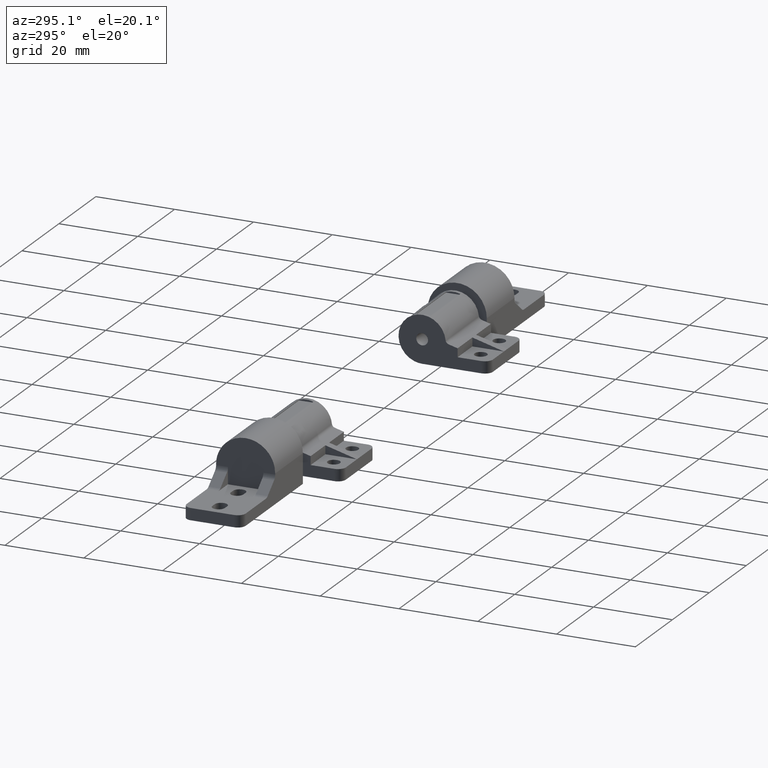
[diagram: clean part render]
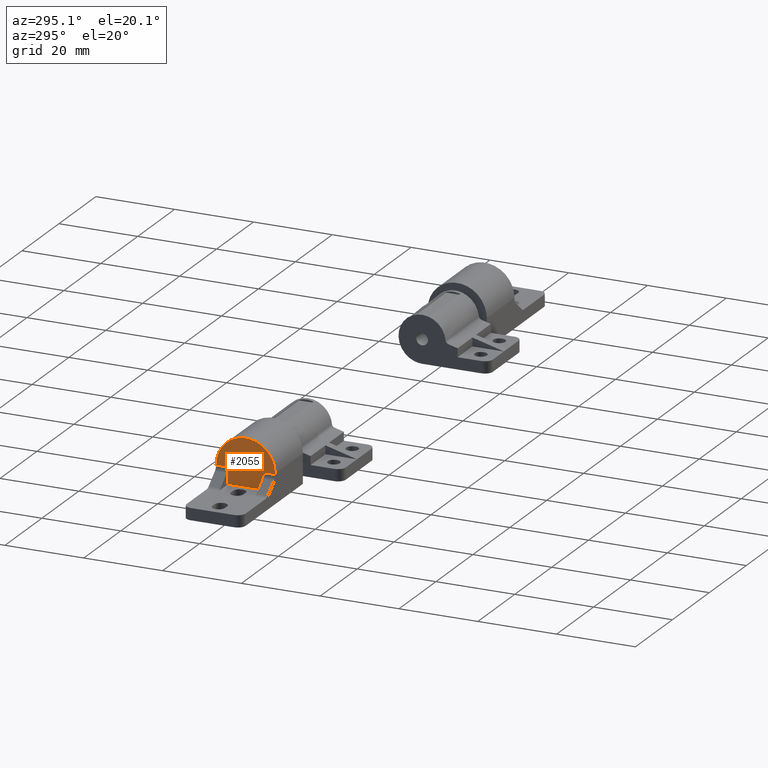
[diagram: same view with one face highlighted and labeled with its STEP entity id]
A machine part, auxiliary view. The second image highlights one B-rep face of the part: STEP entity #2055.
In plain terms, the highlighted face is a freeform B-spline surface patch.
Its self-contained STEP definition (entity closure, byte-faithful):
#1106=CARTESIAN_POINT('',(-15.0,7.500000000000000,0.0));
#1107=VERTEX_POINT('',#1106);
#1113=CARTESIAN_POINT('',(-15.0,-7.500000000000000,0.0));
#1114=VERTEX_POINT('',#1113);
#1115=CARTESIAN_POINT('',(-15.0,-7.500000000000000,0.0));
#1116=CARTESIAN_POINT('',(-15.000000000000011,-7.501328847625066,1.043297594751766));
#1117=CARTESIAN_POINT('',(-15.0,-7.109566026479057,2.882990901483499));
#1118=CARTESIAN_POINT('',(-15.000000000000011,-5.719972775230422,5.018653651019789));
#1119=CARTESIAN_POINT('',(-15.000000000000011,-3.966762885431539,6.493861412510247));
#1120=CARTESIAN_POINT('',(-15.0,-2.139061818931728,7.277218176042391));
#1121=CARTESIAN_POINT('',(-15.0,-0.248362178137775,7.557374842480855));
#1122=CARTESIAN_POINT('',(-15.000000000000011,1.354581506936468,7.439213852767924));
#1123=CARTESIAN_POINT('',(-14.999999999999959,2.888488914937319,6.973746589316159));
#1124=CARTESIAN_POINT('',(-15.000000000000171,4.465772515616563,6.131253869568645));
#1125=CARTESIAN_POINT('',(-15.000000000000060,5.922587102224047,4.777770799378271));
#1126=CARTESIAN_POINT('',(-14.999999999999870,7.169813293310484,2.637708214038809));
#1127=CARTESIAN_POINT('',(-15.000000000000091,7.501063208039253,0.981913970785773));
#1128=CARTESIAN_POINT('',(-15.0,7.500000000000000,0.0));
#1129=B_SPLINE_CURVE_WITH_KNOTS('',3,(#1115,#1116,#1117,#1118,#1119,#1120,#1121,#1122,#1123,#1124,#1125,#1126,#1127,#1128),.UNSPECIFIED.,.F.,.U.,(4,1,1,1,1,1,1,1,1,1,1,4),(0.000001047716193,3.129374237811728,5.522459918324643,7.547461641364459,9.940581025718000,11.413191926827380,13.253763859831601,14.726556317585651,16.199154904521659,18.592318246961661,20.617248221535551,23.562536167939939),.UNSPECIFIED.);
#1130=EDGE_CURVE('',#1114,#1107,#1129,.T.);
#1161=CARTESIAN_POINT('',(-15.0,-4.500000000000000,-4.500000000000000));
#1162=VERTEX_POINT('',#1161);
#1168=CARTESIAN_POINT('',(-15.0,4.499999999999949,-4.500000000000000));
#1169=VERTEX_POINT('',#1168);
#1170=CARTESIAN_POINT('',(-15.0,-4.500000000000000,-4.500000000000000));
#1171=CARTESIAN_POINT('',(-15.0,4.499999999999949,-4.500000000000000));
#1172=QUASI_UNIFORM_CURVE('',1,(#1170,#1171),.UNSPECIFIED.,.F.,.U.);
#1173=EDGE_CURVE('',#1162,#1169,#1172,.T.);
#1345=CARTESIAN_POINT('',(-15.0,4.499999999999949,-0.266374735945797));
#1346=VERTEX_POINT('',#1345);
#1362=CARTESIAN_POINT('',(-15.0,7.500000000000000,-0.266374735945795));
#1363=VERTEX_POINT('',#1362);
#1364=CARTESIAN_POINT('',(-15.0,7.500000000000000,-0.266374735945795));
#1365=CARTESIAN_POINT('',(-15.0,4.499999999999949,-0.266374735945797));
#1366=QUASI_UNIFORM_CURVE('',1,(#1364,#1365),.UNSPECIFIED.,.F.,.U.);
#1367=EDGE_CURVE('',#1363,#1346,#1366,.T.);
#1461=CARTESIAN_POINT('',(-15.0,-4.499999999999949,-0.266374735945797));
#1462=VERTEX_POINT('',#1461);
#1483=CARTESIAN_POINT('',(-15.0,-7.500000000000000,-0.266374735945797));
#1484=VERTEX_POINT('',#1483);
#1498=CARTESIAN_POINT('',(-15.0,-4.499999999999949,-0.266374735945797));
#1499=CARTESIAN_POINT('',(-15.0,-7.500000000000000,-0.266374735945797));
#1500=QUASI_UNIFORM_CURVE('',1,(#1498,#1499),.UNSPECIFIED.,.F.,.U.);
#1501=EDGE_CURVE('',#1462,#1484,#1500,.T.);
#1919=CARTESIAN_POINT('',(-15.0,4.499999999999949,-4.500000000000000));
#1920=CARTESIAN_POINT('',(-15.0,4.499999999999949,-0.266374735945797));
#1921=QUASI_UNIFORM_CURVE('',1,(#1919,#1920),.UNSPECIFIED.,.F.,.U.);
#1922=EDGE_CURVE('',#1169,#1346,#1921,.T.);
#1962=CARTESIAN_POINT('',(-15.0,-4.500000000000000,-4.500000000000000));
#1963=CARTESIAN_POINT('',(-15.0,-4.499999999999949,-0.266374735945797));
#1964=QUASI_UNIFORM_CURVE('',1,(#1962,#1963),.UNSPECIFIED.,.F.,.U.);
#1965=EDGE_CURVE('',#1162,#1462,#1964,.T.);
#2032=CARTESIAN_POINT('',(-15.0,8.249249970927089,8.099399976738049));
#2033=CARTESIAN_POINT('',(-15.0,-8.249250373258443,8.099399976738049));
#2034=CARTESIAN_POINT('',(-15.0,8.249249970927089,-5.099400298606581));
#2035=CARTESIAN_POINT('',(-15.0,-8.249250373258443,-5.099400298606581));
#2036=B_SPLINE_SURFACE_WITH_KNOTS('',1,1,((#2032,#2034),(#2033,#2035)),.UNSPECIFIED.,.F.,.F.,.U.,(2,2),(2,2),(0.0,16.498500344185530),(0.0,13.198800275344629),.UNSPECIFIED.);
#2037=ORIENTED_EDGE('',*,*,#1965,.T.);
#2038=ORIENTED_EDGE('',*,*,#1501,.T.);
#2039=CARTESIAN_POINT('',(-15.0,-7.500000000000000,-0.266374735945797));
#2040=CARTESIAN_POINT('',(-15.0,-7.500000000000000,0.0));
#2041=QUASI_UNIFORM_CURVE('',1,(#2039,#2040),.UNSPECIFIED.,.F.,.U.);
#2042=EDGE_CURVE('',#1484,#1114,#2041,.T.);
#2043=ORIENTED_EDGE('',*,*,#2042,.T.);
#2044=ORIENTED_EDGE('',*,*,#1130,.T.);
#2045=CARTESIAN_POINT('',(-15.0,7.500000000000000,0.0));
#2046=CARTESIAN_POINT('',(-15.0,7.500000000000000,-0.266374735945795));
#2047=QUASI_UNIFORM_CURVE('',1,(#2045,#2046),.UNSPECIFIED.,.F.,.U.);
#2048=EDGE_CURVE('',#1107,#1363,#2047,.T.);
#2049=ORIENTED_EDGE('',*,*,#2048,.T.);
#2050=ORIENTED_EDGE('',*,*,#1367,.T.);
#2051=ORIENTED_EDGE('',*,*,#1922,.F.);
#2052=ORIENTED_EDGE('',*,*,#1173,.F.);
#2053=EDGE_LOOP('',(#2037,#2038,#2043,#2044,#2049,#2050,#2051,#2052));
#2054=FACE_OUTER_BOUND('',#2053,.T.);
#2055=ADVANCED_FACE('',(#2054),#2036,.F.);